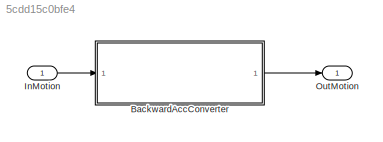
MODEL slx_5cdd15c0bfe4
KIND model
CONFIG AbsTol = auto
CONFIG EnableMultiTasking = off
CONFIG FixedStep = auto
CONFIG MaxStep = auto
CONFIG MinStep = auto
CONFIG RelTol = 1e-3
CONFIG SampleTimeConstraint = Unconstrained
CONFIG SolverName = VariableStepAuto
CONFIG StartTime = 0.0
CONFIG StopTime = 10.0
BLOCK [SubSystem] BackwardAccConverter
  ReferencedSubsystem = BackwardAccConverter
BLOCK [Inport] InMotion
BLOCK [Outport] OutMotion
LINE BackwardAccConverter:1 -> OutMotion:1
LINE InMotion:1 -> BackwardAccConverter:1
